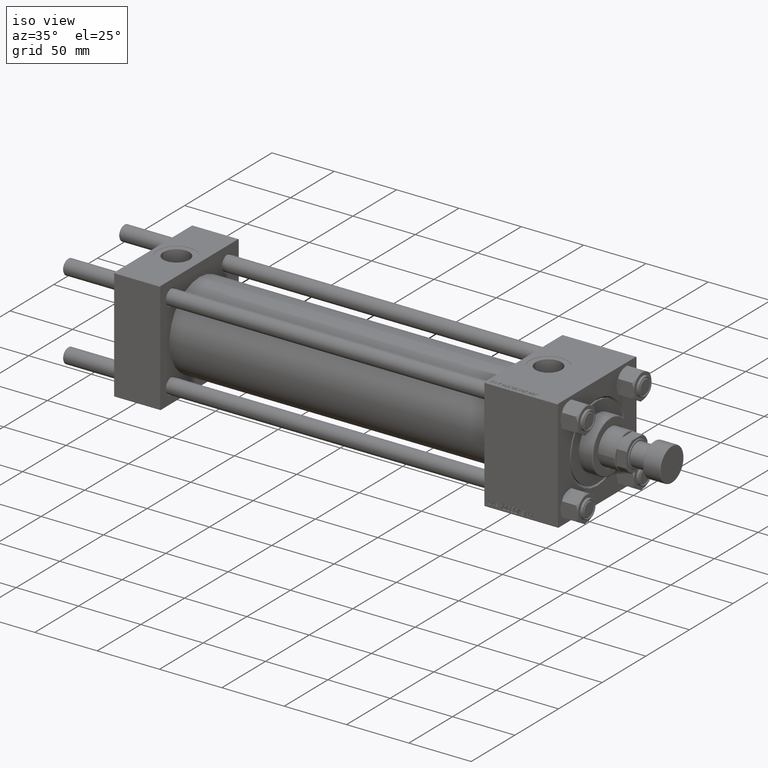
[diagram: clean part render]
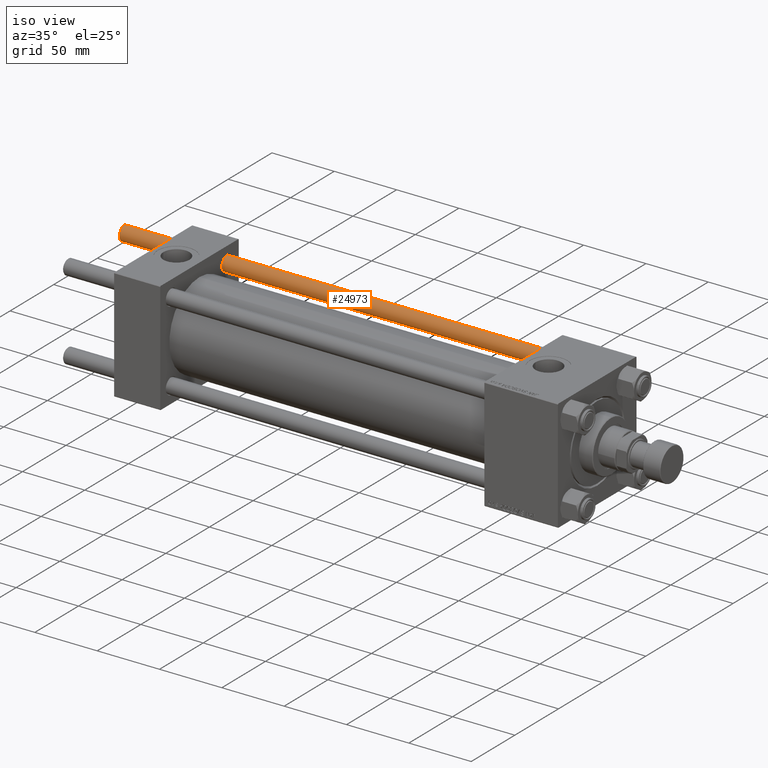
[diagram: same view with one face highlighted and labeled with its STEP entity id]
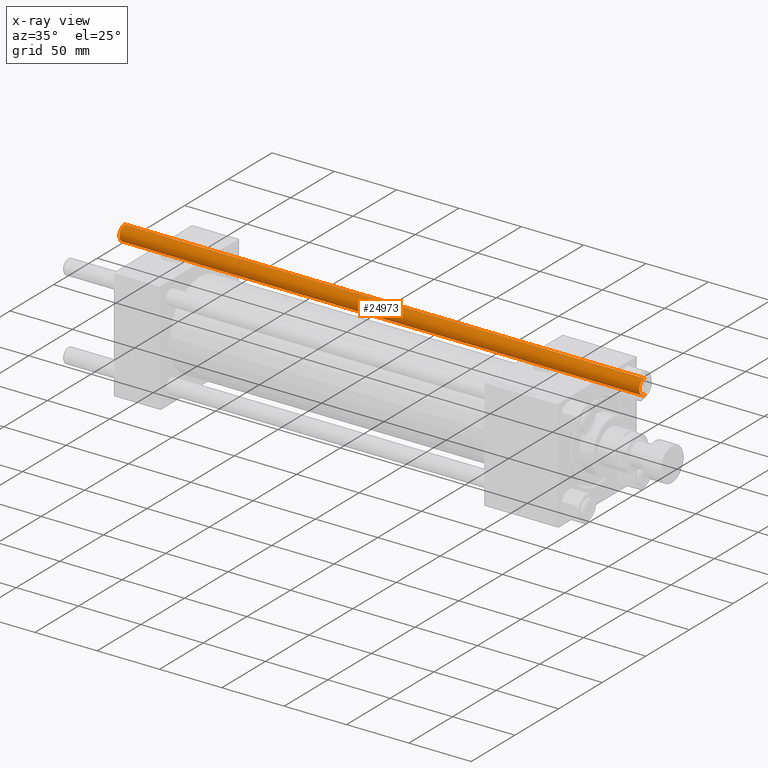
[diagram: x-ray of the same camera — body ghosted, the highlighted face saturated]
A machine part, iso view. The second image highlights one B-rep face of the part: STEP entity #24973.
The next image is the same camera in x-ray: the body ghosted, the highlighted face saturated — about 0% of this face is hidden behind the body in this view.
In plain terms, the highlighted cylindrical surface (edge-blend (fillet) strip) has radius 6 mm, axis along (-1, -0, -0).
Its self-contained STEP definition (entity closure, byte-faithful):
#2144 = CYLINDRICAL_SURFACE ( 'NONE', #8935, 6.000000000000000888 ) ;
#4851 = VERTEX_POINT ( 'NONE', #10252 ) ;
#5589 = DIRECTION ( 'NONE',  ( -1.000000000000000000, 0.000000000000000000, 0.000000000000000000 ) ) ;
#5721 = DIRECTION ( 'NONE',  ( 1.000000000000000000, 0.000000000000000000, 0.000000000000000000 ) ) ;
#8935 = AXIS2_PLACEMENT_3D ( 'NONE', #18006, #30433, #5589 ) ;
#9947 = CARTESIAN_POINT ( 'NONE',  ( 0.000000000000000000, 0.000000000000000000, 417.5000000000000000 ) ) ;
#10252 = CARTESIAN_POINT ( 'NONE',  ( -6.000000000000000888, 0.000000000000000000, 417.5000000000000000 ) ) ;
#10676 = CIRCLE ( 'NONE', #30950, 6.000000000000000888 ) ;
#10962 = ORIENTED_EDGE ( 'NONE', *, *, #39801, .F. ) ;
#11592 = CARTESIAN_POINT ( 'NONE',  ( 6.000000000000000888, 7.347880794884120722E-16, 417.5000000000000000 ) ) ;
#12027 = CARTESIAN_POINT ( 'NONE',  ( 6.000000000000000888, 7.347880794884120722E-16, 0.5000000000000559552 ) ) ;
#12809 = CIRCLE ( 'NONE', #42390, 6.000000000000000888 ) ;
#13270 = CARTESIAN_POINT ( 'NONE',  ( 0.000000000000000000, 0.000000000000000000, 0.5000000000000559552 ) ) ;
#14439 = VECTOR ( 'NONE', #35362, 1000.000000000000000 ) ;
#16832 = DIRECTION ( 'NONE',  ( 0.000000000000000000, 0.000000000000000000, -1.000000000000000000 ) ) ;
#17499 = DIRECTION ( 'NONE',  ( -0.000000000000000000, -0.000000000000000000, 1.000000000000000000 ) ) ;
#17807 = EDGE_CURVE ( 'NONE', #34836, #4851, #10676, .T. ) ;
#18006 = CARTESIAN_POINT ( 'NONE',  ( 0.000000000000000000, 0.000000000000000000, 418.0000000000000000 ) ) ;
#20714 = ORIENTED_EDGE ( 'NONE', *, *, #42484, .T. ) ;
#21388 = CARTESIAN_POINT ( 'NONE',  ( -6.000000000000000888, 0.000000000000000000, 418.0000000000000000 ) ) ;
#21912 = DIRECTION ( 'NONE',  ( -0.000000000000000000, -0.000000000000000000, -1.000000000000000000 ) ) ;
#23549 = VERTEX_POINT ( 'NONE', #38972 ) ;
#24973 = ADVANCED_FACE ( 'NONE', ( #30176 ), #2144, .T. ) ;
#25847 = CARTESIAN_POINT ( 'NONE',  ( 6.000000000000000888, 7.347880794884120722E-16, 418.0000000000000000 ) ) ;
#29827 = LINE ( 'NONE', #25847, #14439 ) ;
#30176 = FACE_OUTER_BOUND ( 'NONE', #47708, .T. ) ;
#30433 = DIRECTION ( 'NONE',  ( -0.000000000000000000, -0.000000000000000000, -1.000000000000000000 ) ) ;
#30950 = AXIS2_PLACEMENT_3D ( 'NONE', #9947, #16832, #5721 ) ;
#32547 = ORIENTED_EDGE ( 'NONE', *, *, #17807, .T. ) ;
#34836 = VERTEX_POINT ( 'NONE', #11592 ) ;
#35362 = DIRECTION ( 'NONE',  ( -0.000000000000000000, -0.000000000000000000, -1.000000000000000000 ) ) ;
#37712 = EDGE_CURVE ( 'NONE', #4851, #23549, #38611, .T. ) ;
#38611 = LINE ( 'NONE', #21388, #41365 ) ;
#38972 = CARTESIAN_POINT ( 'NONE',  ( -6.000000000000000888, 0.000000000000000000, 0.5000000000000559552 ) ) ;
#39409 = ORIENTED_EDGE ( 'NONE', *, *, #37712, .T. ) ;
#39801 = EDGE_CURVE ( 'NONE', #34836, #47709, #29827, .T. ) ;
#41365 = VECTOR ( 'NONE', #21912, 1000.000000000000000 ) ;
#42390 = AXIS2_PLACEMENT_3D ( 'NONE', #13270, #17499, #49780 ) ;
#42484 = EDGE_CURVE ( 'NONE', #23549, #47709, #12809, .T. ) ;
#47708 = EDGE_LOOP ( 'NONE', ( #10962, #32547, #39409, #20714 ) ) ;
#47709 = VERTEX_POINT ( 'NONE', #12027 ) ;
#49780 = DIRECTION ( 'NONE',  ( 1.000000000000000000, 0.000000000000000000, 0.000000000000000000 ) ) ;